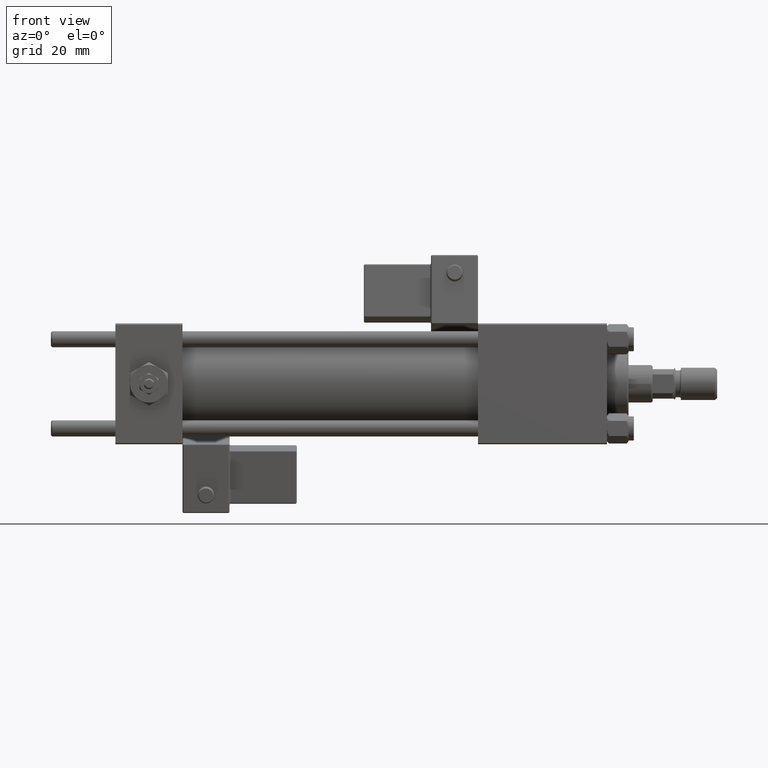
[diagram: clean part render]
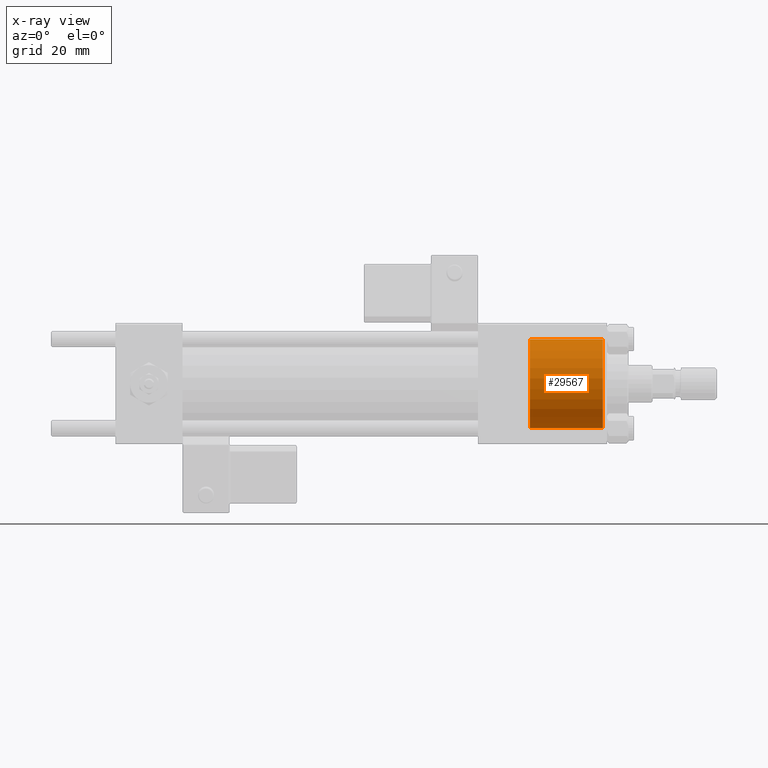
[diagram: x-ray — body ghosted, one internal face saturated and labeled with its STEP entity id]
A machine part, front view, then the same camera in x-ray: the body is ghosted and one INTERNAL B-rep face — a face not visible from any outside direction — is saturated and labeled: STEP entity #29567.
In plain terms, the highlighted cylindrical surface (partial cylindrical patch) has radius 16.5 mm, axis along (1, 0, 0).
Its self-contained STEP definition (entity closure, byte-faithful):
#893 = ORIENTED_EDGE ( 'NONE', *, *, #36865, .F. ) ;
#2599 = EDGE_CURVE ( 'NONE', #23004, #23169, #23341, .T. ) ;
#2776 = DIRECTION ( 'NONE',  ( 1.000000000000000000, -0.000000000000000000, -0.000000000000000000 ) ) ;
#3710 = CARTESIAN_POINT ( 'NONE',  ( 154.2999999999999829, 0.000000000000000000, -16.50000000000000000 ) ) ;
#5476 = DIRECTION ( 'NONE',  ( 1.000000000000000000, -0.000000000000000000, -0.000000000000000000 ) ) ;
#6639 = EDGE_CURVE ( 'NONE', #23169, #18098, #27785, .T. ) ;
#9473 = VERTEX_POINT ( 'NONE', #3710 ) ;
#11212 = EDGE_LOOP ( 'NONE', ( #23926, #15863, #42709, #893 ) ) ;
#11591 = AXIS2_PLACEMENT_3D ( 'NONE', #26588, #5476, #22473 ) ;
#11835 = DIRECTION ( 'NONE',  ( 0.000000000000000000, 0.000000000000000000, 1.000000000000000000 ) ) ;
#14787 = CIRCLE ( 'NONE', #27951, 16.50000000000000000 ) ;
#15863 = ORIENTED_EDGE ( 'NONE', *, *, #2599, .T. ) ;
#17937 = VECTOR ( 'NONE', #22163, 1000.000000000000000 ) ;
#18098 = VERTEX_POINT ( 'NONE', #22372 ) ;
#18584 = LINE ( 'NONE', #31201, #17937 ) ;
#18629 = CYLINDRICAL_SURFACE ( 'NONE', #11591, 16.50000000000000000 ) ;
#18635 = CARTESIAN_POINT ( 'NONE',  ( 181.5000000000000000, 2.020667218593133100E-15, 16.50000000000000000 ) ) ;
#21936 = FACE_OUTER_BOUND ( 'NONE', #11212, .T. ) ;
#22163 = DIRECTION ( 'NONE',  ( 1.000000000000000000, -0.000000000000000000, -0.000000000000000000 ) ) ;
#22372 = CARTESIAN_POINT ( 'NONE',  ( 181.5000000000000000, 0.000000000000000000, -16.50000000000000000 ) ) ;
#22473 = DIRECTION ( 'NONE',  ( 0.000000000000000000, 0.000000000000000000, -1.000000000000000000 ) ) ;
#23004 = VERTEX_POINT ( 'NONE', #53277 ) ;
#23169 = VERTEX_POINT ( 'NONE', #18635 ) ;
#23341 = LINE ( 'NONE', #44184, #32877 ) ;
#23635 = DIRECTION ( 'NONE',  ( 1.000000000000000000, 0.000000000000000000, 0.000000000000000000 ) ) ;
#23926 = ORIENTED_EDGE ( 'NONE', *, *, #52740, .F. ) ;
#26588 = CARTESIAN_POINT ( 'NONE',  ( 154.2999999999999829, 0.000000000000000000, 0.000000000000000000 ) ) ;
#27785 = CIRCLE ( 'NONE', #47906, 16.50000000000000000 ) ;
#27951 = AXIS2_PLACEMENT_3D ( 'NONE', #29962, #37900, #46693 ) ;
#29567 = ADVANCED_FACE ( 'NONE', ( #21936 ), #18629, .F. ) ;
#29962 = CARTESIAN_POINT ( 'NONE',  ( 154.2999999999999829, 0.000000000000000000, 0.000000000000000000 ) ) ;
#31201 = CARTESIAN_POINT ( 'NONE',  ( 154.2999999999999829, 0.000000000000000000, -16.50000000000000000 ) ) ;
#32680 = CARTESIAN_POINT ( 'NONE',  ( 181.5000000000000000, 0.000000000000000000, 0.000000000000000000 ) ) ;
#32877 = VECTOR ( 'NONE', #2776, 1000.000000000000000 ) ;
#36865 = EDGE_CURVE ( 'NONE', #9473, #18098, #18584, .T. ) ;
#37900 = DIRECTION ( 'NONE',  ( 1.000000000000000000, 0.000000000000000000, 0.000000000000000000 ) ) ;
#42709 = ORIENTED_EDGE ( 'NONE', *, *, #6639, .T. ) ;
#44184 = CARTESIAN_POINT ( 'NONE',  ( 154.2999999999999829, 2.020667218593133100E-15, 16.50000000000000000 ) ) ;
#46693 = DIRECTION ( 'NONE',  ( 0.000000000000000000, 0.000000000000000000, -1.000000000000000000 ) ) ;
#47906 = AXIS2_PLACEMENT_3D ( 'NONE', #32680, #23635, #11835 ) ;
#52740 = EDGE_CURVE ( 'NONE', #23004, #9473, #14787, .T. ) ;
#53277 = CARTESIAN_POINT ( 'NONE',  ( 154.2999999999999829, 2.020667218593133100E-15, 16.50000000000000000 ) ) ;